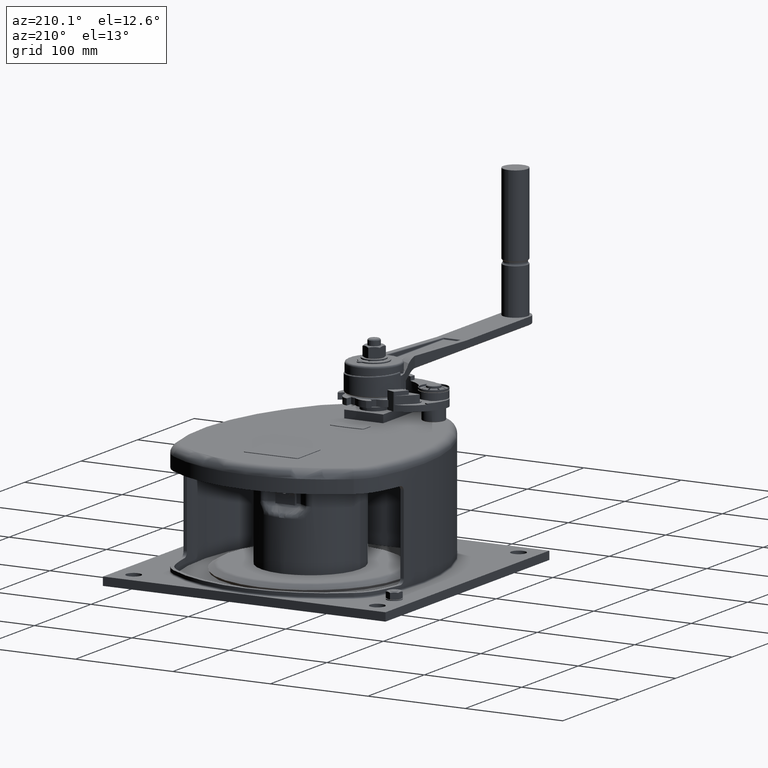
[diagram: clean part render]
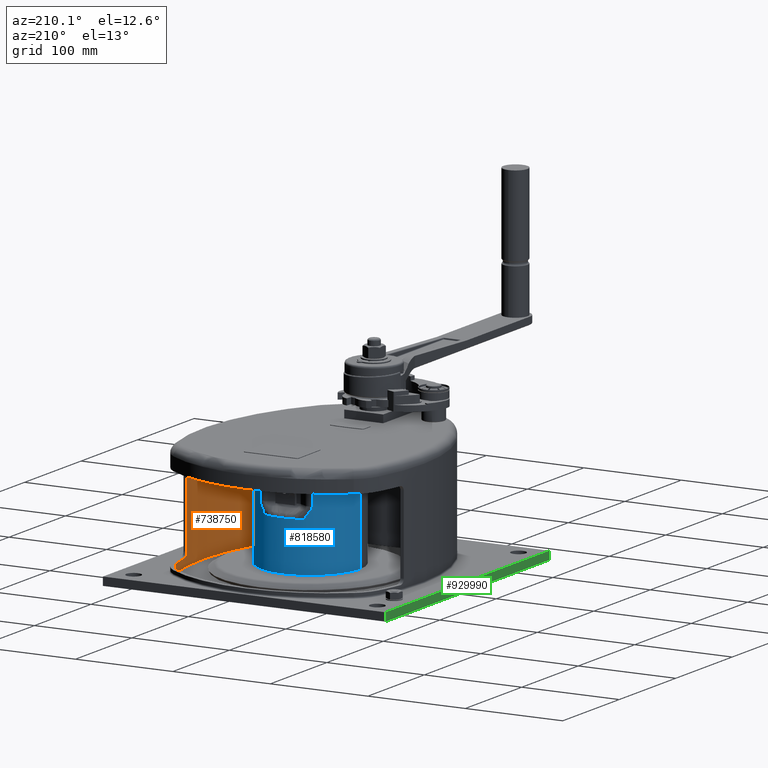
[diagram: same view with three faces highlighted in distinct colors, each labeled with its STEP entity id]
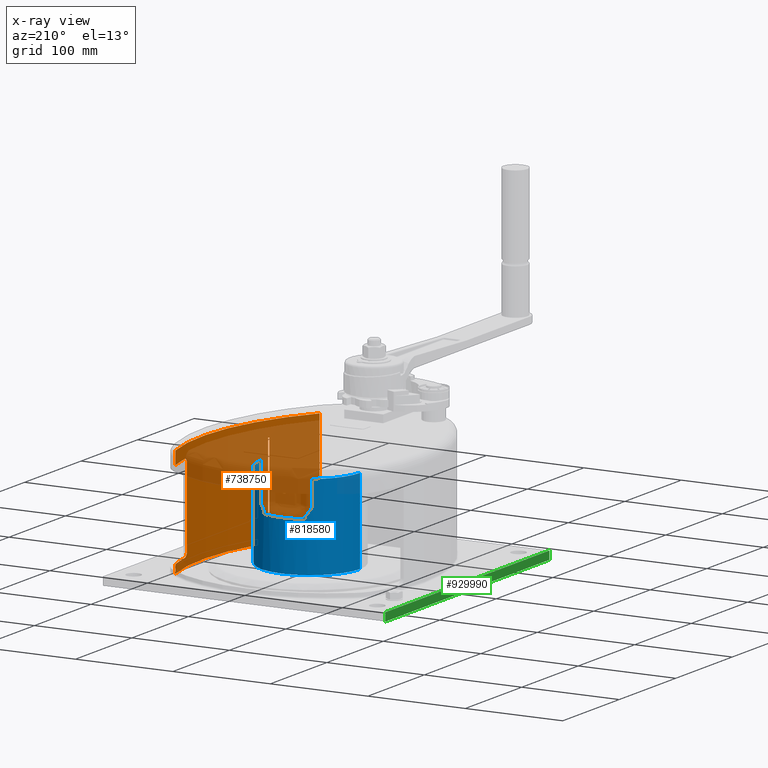
[diagram: x-ray of the same camera — body ghosted, the three highlighted faces saturated]
A machine part, auxiliary view with three faces highlighted in distinct colors.
The next image is the same camera in x-ray (body ghosted, the three faces saturated) — at least one of them is partly hidden behind the body in this view.
Their STEP definitions:

[orange] entity #738750 — the highlighted cylindrical surface (partial cylindrical patch) has radius 226.5 mm, axis along (0, 0, 1).
#279470=CARTESIAN_POINT('',(0.,207.5,-27.));
#279480=DIRECTION('',(-1.,0.,0.));
#279490=DIRECTION('',(0.,1.,0.));
#279500=AXIS2_PLACEMENT_3D('',#279470,#279480,#279490);
#279510=CYLINDRICAL_SURFACE('',#279500,5.);
#280630=CARTESIAN_POINT('',(0.,207.5,-107.));
#280640=DIRECTION('',(-1.,0.,0.));
#280650=DIRECTION('',(0.,1.,0.));
#280660=AXIS2_PLACEMENT_3D('',#280630,#280640,#280650);
#280670=CYLINDRICAL_SURFACE('',#280660,5.);
#294730=CARTESIAN_POINT('',(247.998265216868,233.973623306553,-22.));
#294740=VERTEX_POINT('',#294730);
#294770=CARTESIAN_POINT('',(30.,172.5,-22.));
#294780=DIRECTION('',(0.,0.,1.));
#294790=DIRECTION('',(1.,0.,0.));
#294800=AXIS2_PLACEMENT_3D('',#294770,#294780,#294790);
#294810=CIRCLE('',#294800,226.5);
#294820=CARTESIAN_POINT('',(253.779467333355,207.5,-22.));
#294830=VERTEX_POINT('',#294820);
#294840=EDGE_CURVE('',#294830,#294740,#294810,.T.);
#296380=CARTESIAN_POINT('',(30.,172.5,0.));
#296390=DIRECTION('',(0.,0.,1.));
#296400=DIRECTION('',(1.,0.,0.));
#296410=AXIS2_PLACEMENT_3D('',#296380,#296390,#296400);
#296420=CYLINDRICAL_SURFACE('',#296410,226.5);
#296430=CARTESIAN_POINT('',(253.779467333355,207.5,-22.));
#296440=CARTESIAN_POINT('',(253.792112048051,207.419153499451,-22.));
#296450=CARTESIAN_POINT('',(253.804713364377,207.338297273955,
-22.0019612508768));
#296460=CARTESIAN_POINT('',(253.817256419751,207.25752765568,
-22.0058827444442));
#296470=CARTESIAN_POINT('',(253.829799794675,207.176755979702,
-22.0098043379165));
#296480=CARTESIAN_POINT('',(253.842287735202,207.096052607267,
-22.0156877720614));
#296490=CARTESIAN_POINT('',(253.854700022342,207.015551247335,
-22.0235243991314));
#296500=CARTESIAN_POINT('',(253.867113467603,206.935042376267,
-22.0313617573936));
#296510=CARTESIAN_POINT('',(253.879461446794,206.854669381813,
-22.0411592046096));
#296520=CARTESIAN_POINT('',(253.891723285403,206.774571394734,
-22.0529045553313));
#296530=CARTESIAN_POINT('',(253.903985210193,206.694472844691,
-22.0646499886045));
#296540=CARTESIAN_POINT('',(253.916160487728,206.614652633495,
-22.078342749721));
#296550=CARTESIAN_POINT('',(253.928230381062,206.535241124548,
-22.0939587942786));
#296560=CARTESIAN_POINT('',(253.94030222336,206.455816792771,
-22.1095773604086));
#296570=CARTESIAN_POINT('',(253.952289021068,206.376667231301,
-22.1271463102839));
#296580=CARTESIAN_POINT('',(253.964170837905,206.297931606678,
-22.1466473878587));
#296590=CARTESIAN_POINT('',(253.976052642125,206.219196065665,
-22.1661484447252));
#296600=CARTESIAN_POINT('',(253.987829324573,206.140875404775,
-22.1875814276274));
#296610=CARTESIAN_POINT('',(253.999481642453,206.06310807885,
-22.2109143245357));
#296620=CARTESIAN_POINT('',(254.011133960899,205.985340749145,
-22.2342472225783));
#296630=CARTESIAN_POINT('',(254.022661777602,205.90812768861,
-22.2594797535473));
#296640=CARTESIAN_POINT('',(254.034046989945,205.831603461386,
-22.2865667513012));
#296650=CARTESIAN_POINT('',(254.045432260567,205.755078842449,
-22.313653887708));
#296660=CARTESIAN_POINT('',(254.056674605353,205.679245250844,
-22.3425946279053));
#296670=CARTESIAN_POINT('',(254.067757998741,205.60422670019,
-22.3733334250534));
#296680=CARTESIAN_POINT('',(254.078843474875,205.529194052362,
-22.4040779985086));
#296690=CARTESIAN_POINT('',(254.089808552225,205.454715369767,
-22.4367283919564));
#296700=CARTESIAN_POINT('',(254.100635206179,205.380926084691,
-22.4712556109382));
#296710=CARTESIAN_POINT('',(254.11146182104,205.307137066063,
-22.5057827052445));
#296720=CARTESIAN_POINT('',(254.122149877562,205.234038373341,
-22.542186306419));
#296730=CARTESIAN_POINT('',(254.132681533373,205.161767690369,
-22.5804220036056));
#296740=CARTESIAN_POINT('',(254.143213164459,205.089497177071,
-22.6186576110246));
#296750=CARTESIAN_POINT('',(254.153588260213,205.018055616561,
-22.6587248931504));
#296760=CARTESIAN_POINT('',(254.163789697187,204.947579086822,
-22.7005642833048));
#296770=CARTESIAN_POINT('',(254.173991122279,204.87710263917,
-22.7424036247274));
#296780=CARTESIAN_POINT('',(254.184018757673,204.807592154948,
-22.7860145605707));
#296790=CARTESIAN_POINT('',(254.193856649923,204.739178656321,
-22.8313232905031));
#296800=CARTESIAN_POINT('',(254.203694541975,204.670765159063,
-22.8766320195283));
#296810=CARTESIAN_POINT('',(254.213342566651,204.603449546723,
-22.9236379484724));
#296820=CARTESIAN_POINT('',(254.222786312771,204.537354730656,
-22.9722545998982));
#296830=CARTESIAN_POINT('',(254.232230069561,204.471259839908,
-23.0208713062567));
#296840=CARTESIAN_POINT('',(254.241469432998,204.406386589501,
-23.0710980739244));
#296850=CARTESIAN_POINT('',(254.250491833638,204.34284711472,
-23.1228379374896));
#296860=CARTESIAN_POINT('',(254.259514255282,204.279307492026,
-23.1745779214995));
#296870=CARTESIAN_POINT('',(254.268319611419,204.217102412061,
-23.2278302893425));
#296880=CARTESIAN_POINT('',(254.276897404765,204.156330970161,
-23.282490427868));
#296890=CARTESIAN_POINT('',(254.28547522911,204.095559308648,
-23.3371507639205));
#296900=CARTESIAN_POINT('',(254.293825402693,204.036221953228,
-23.3932181273794));
#296910=CARTESIAN_POINT('',(254.301939662104,203.978403133226,
-23.4505837792771));
#296920=CARTESIAN_POINT('',(254.310050314602,203.920610014574,
-23.5079239312656));
#296930=CARTESIAN_POINT('',(254.317961922616,203.864072804645,
-23.5668200382654));
#296940=CARTESIAN_POINT('',(254.32566317156,203.80889398621,
-23.6272064405066));
#296950=CARTESIAN_POINT('',(254.333364237907,203.75371647607,
-23.6875914109798));
#296960=CARTESIAN_POINT('',(254.340854151959,203.699903049052,
-23.7494609820313));
#296970=CARTESIAN_POINT('',(254.348120327466,203.647566606926,
-23.8127195052942));
#296980=CARTESIAN_POINT('',(254.355386484548,203.595230297515,
-23.8759778681472));
#296990=CARTESIAN_POINT('',(254.362428803239,203.544371726771,
-23.9406243894982));
#297000=CARTESIAN_POINT('',(254.369235863154,203.495096357077,
-24.0065493471743));
#297010=CARTESIAN_POINT('',(254.37604291435,203.445821050505,
-24.072474220401));
#297020=CARTESIAN_POINT('',(254.382614614505,203.398129651058,
-24.1396766487816));
#297030=CARTESIAN_POINT('',(254.388941054768,203.352117144861,
-24.2080351327346));
#297040=CARTESIAN_POINT('',(254.39526749458,203.306104641945,
-24.2763936118138));
#297050=CARTESIAN_POINT('',(254.401348591875,203.261771672406,
-24.3459071995742));
#297060=CARTESIAN_POINT('',(254.407176197184,203.219200367304,
-24.4164453741571));
#297070=CARTESIAN_POINT('',(254.413003809136,203.176629013668,
-24.4869836291587));
#297080=CARTESIAN_POINT('',(254.418577857901,203.135819882441,
-24.5585454813459));
#297090=CARTESIAN_POINT('',(254.423892110843,203.096840520235,
-24.6309945977782));
#297100=CARTESIAN_POINT('',(254.429206376537,203.057861064502,
-24.7034438880438));
#297110=CARTESIAN_POINT('',(254.43426078824,203.020711838871,
-24.7767794353902));
#297120=CARTESIAN_POINT('',(254.439051100609,202.985444741026,
-24.8508627745847));
#297130=CARTESIAN_POINT('',(254.443841430941,202.950177510932,
-24.9249463915855));
#297140=CARTESIAN_POINT('',(254.448367618291,202.916792759319,
-24.9997768044341));
#297150=CARTESIAN_POINT('',(254.452627386709,202.885326379737,
-25.0752175763348));
#297160=CARTESIAN_POINT('',(254.456885306508,202.853873655676,
-25.150625609069));
#297170=CARTESIAN_POINT('',(254.460896483567,202.824193951604,
-25.2269872082799));
#297180=CARTESIAN_POINT('',(254.464653702333,202.796356848504,
-25.3041989788349));
#297190=CARTESIAN_POINT('',(254.468410836794,202.768520370015,
-25.3814090169069));
#297200=CARTESIAN_POINT('',(254.471913622561,202.742529406561,
-25.4594621719887));
#297210=CARTESIAN_POINT('',(254.475155028818,202.718450899872,
-25.5382242979625));
#297220=CARTESIAN_POINT('',(254.478396426722,202.69437245524,
-25.6169862209472));
#297230=CARTESIAN_POINT('',(254.48137639423,202.672206871348,
-25.6964560554384));
#297240=CARTESIAN_POINT('',(254.484089379559,202.652008480866,
-25.7764893827976));
#297250=CARTESIAN_POINT('',(254.486802361409,202.631810116283,
-25.8565226075403));
#297260=CARTESIAN_POINT('',(254.489248320756,202.613579267791,
-25.9371182025863));
#297270=CARTESIAN_POINT('',(254.491423401122,202.597355686805,
-26.0181248866071));
#297280=CARTESIAN_POINT('',(254.493598481411,202.581132106397,
-26.0991315677469));
#297290=CARTESIAN_POINT('',(254.495502653821,202.566916026299,
-26.1805481808538));
#297300=CARTESIAN_POINT('',(254.497133871905,202.554731462784,
-26.2622201582968));
#297310=CARTESIAN_POINT('',(254.498765091964,202.542546884512,
-26.3438922346598));
#297320=CARTESIAN_POINT('',(254.500123340834,202.532393959759,
-26.4258185126912));
#297330=CARTESIAN_POINT('',(254.5012084003,202.524280620945,
-26.5078448812618));
#297340=CARTESIAN_POINT('',(254.502293462485,202.516167261795,
-26.5898714554389));
#297350=CARTESIAN_POINT('',(254.503105330831,202.510093526042,
-26.6719969818668));
#297360=CARTESIAN_POINT('',(254.503645536822,202.506051734228,
-26.7540717202159));
#297370=CARTESIAN_POINT('',(254.504185744917,202.502009926667,
-26.8361467783506));
#297380=CARTESIAN_POINT('',(254.504454298796,202.5,-26.918169967056));
#297390=CARTESIAN_POINT('',(254.504454298796,202.5,-27.));
#297400=B_SPLINE_CURVE_WITH_KNOTS('',3,(#296430,#296440,#296450,#296460,
#296470,#296480,#296490,#296500,#296510,#296520,#296530,#296540,#296550,
#296560,#296570,#296580,#296590,#296600,#296610,#296620,#296630,#296640,
#296650,#296660,#296670,#296680,#296690,#296700,#296710,#296720,#296730,
#296740,#296750,#296760,#296770,#296780,#296790,#296800,#296810,#296820,
#296830,#296840,#296850,#296860,#296870,#296880,#296890,#296900,#296910,
#296920,#296930,#296940,#296950,#296960,#296970,#296980,#296990,#297000,
#297010,#297020,#297030,#297040,#297050,#297060,#297070,#297080,#297090,
#297100,#297110,#297120,#297130,#297140,#297150,#297160,#297170,#297180,
#297190,#297200,#297210,#297220,#297230,#297240,#297250,#297260,#297270,
#297280,#297290,#297300,#297310,#297320,#297330,#297340,#297350,#297360,
#297370,#297380,#297390),.UNSPECIFIED.,.F.,.F.,(4,3,3,3,3,3,3,3,3,3,3,3,
3,3,3,3,3,3,3,3,3,3,3,3,3,3,3,3,3,3,3,3,4),(0.,0.245493394500922,
0.491007956421975,0.736602755545547,0.982181288692658,1.2279358182142,
1.47396617878082,1.71998289530823,1.96569988138808,2.21175818044372,
2.45871310579364,2.70628302510493,2.95416404397753,3.2020426710242,
3.4496077782439,3.69656261534219,3.94263763188693,4.188612923617,
4.43551023997235,4.68304923229731,4.93092111993803,5.17880587668824,
5.42638479870057,5.67335307746212,5.91943319419999,6.16541091155663,
6.41231173077595,6.65985438449989,6.90772776206068,7.1556082311978,
7.40317255539449,7.65011080648077,7.89614012607823),.UNSPECIFIED.);
#297410=SURFACE_CURVE('',#297400,(#296420,#279510),.CURVE_3D.);
#297420=CARTESIAN_POINT('',(254.504454298796,202.5,-27.));
#297430=VERTEX_POINT('',#297420);
#297440=EDGE_CURVE('',#294830,#297430,#297410,.T.);
#735310=CARTESIAN_POINT('',(254.504454298796,202.5,-107.));
#735320=VERTEX_POINT('',#735310);
#735350=CARTESIAN_POINT('',(254.504454298796,202.5,-107.));
#735360=CARTESIAN_POINT('',(254.504454298796,202.5,-107.081830032944));
#735370=CARTESIAN_POINT('',(254.504185744917,202.502009926667,
-107.163853221649));
#735380=CARTESIAN_POINT('',(254.503645536822,202.506051734228,
-107.245928279784));
#735390=CARTESIAN_POINT('',(254.503105330831,202.510093526042,
-107.328003018133));
#735400=CARTESIAN_POINT('',(254.502293462485,202.516167261795,
-107.410128544561));
#735410=CARTESIAN_POINT('',(254.5012084003,202.524280620945,
-107.492155118738));
#735420=CARTESIAN_POINT('',(254.500123340834,202.532393959759,
-107.574181487309));
#735430=CARTESIAN_POINT('',(254.498765091964,202.542546884512,
-107.65610776534));
#735440=CARTESIAN_POINT('',(254.497133871905,202.554731462784,
-107.737779841703));
#735450=CARTESIAN_POINT('',(254.495502653821,202.566916026299,
-107.819451819146));
#735460=CARTESIAN_POINT('',(254.493598481411,202.581132106397,
-107.900868432253));
#735470=CARTESIAN_POINT('',(254.491423401122,202.597355686805,
-107.981875113393));
#735480=CARTESIAN_POINT('',(254.489248320756,202.613579267791,
-108.062881797415));
#735490=CARTESIAN_POINT('',(254.486802361409,202.631810116283,
-108.143477392461));
#735500=CARTESIAN_POINT('',(254.484089379559,202.652008480866,
-108.223510617202));
#735510=CARTESIAN_POINT('',(254.48137639423,202.672206871347,
-108.30354394456));
#735520=CARTESIAN_POINT('',(254.478396426722,202.694372455239,
-108.383013779051));
#735530=CARTESIAN_POINT('',(254.475155028818,202.718450899872,
-108.461775702037));
#735540=CARTESIAN_POINT('',(254.471913622561,202.74252940656,
-108.540537828009));
#735550=CARTESIAN_POINT('',(254.468410836794,202.768520370014,
-108.618590983091));
#735560=CARTESIAN_POINT('',(254.464653702333,202.796356848504,
-108.695801021165));
#735570=CARTESIAN_POINT('',(254.460896483567,202.824193951603,
-108.773012791718));
#735580=CARTESIAN_POINT('',(254.456885306508,202.853873655675,
-108.849374390929));
#735590=CARTESIAN_POINT('',(254.452627386709,202.885326379737,
-108.924782423665));
#735600=CARTESIAN_POINT('',(254.448367618291,202.916792759319,
-109.000223195566));
#735610=CARTESIAN_POINT('',(254.443841430941,202.950177510932,
-109.075053608415));
#735620=CARTESIAN_POINT('',(254.439051100609,202.985444741026,
-109.149137225415));
#735630=CARTESIAN_POINT('',(254.434260788241,203.02071183887,
-109.223220564609));
#735640=CARTESIAN_POINT('',(254.429206376537,203.057861064501,
-109.296556111955));
#735650=CARTESIAN_POINT('',(254.423892110843,203.096840520235,
-109.369005402222));
#735660=CARTESIAN_POINT('',(254.418577857901,203.135819882441,
-109.441454518654));
#735670=CARTESIAN_POINT('',(254.413003809136,203.176629013669,
-109.513016370841));
#735680=CARTESIAN_POINT('',(254.407176197184,203.219200367304,
-109.583554625843));
#735690=CARTESIAN_POINT('',(254.401348591875,203.261771672406,
-109.654092800426));
#735700=CARTESIAN_POINT('',(254.39526749458,203.306104641945,
-109.723606388186));
#735710=CARTESIAN_POINT('',(254.388941054768,203.352117144861,
-109.791964867265));
#735720=CARTESIAN_POINT('',(254.382614614505,203.398129651058,
-109.860323351218));
#735730=CARTESIAN_POINT('',(254.37604291435,203.445821050505,
-109.927525779599));
#735740=CARTESIAN_POINT('',(254.369235863154,203.495096357077,
-109.993450652826));
#735750=CARTESIAN_POINT('',(254.362428803239,203.544371726772,
-110.059375610503));
#735760=CARTESIAN_POINT('',(254.355386484548,203.595230297516,
-110.124022131855));
#735770=CARTESIAN_POINT('',(254.348120327466,203.647566606926,
-110.187280494706));
#735780=CARTESIAN_POINT('',(254.340854151959,203.699903049052,
-110.250539017969));
#735790=CARTESIAN_POINT('',(254.333364237907,203.75371647607,
-110.31240858902));
#735800=CARTESIAN_POINT('',(254.32566317156,203.80889398621,
-110.372793559493));
#735810=CARTESIAN_POINT('',(254.317961922616,203.864072804645,
-110.433179961735));
#735820=CARTESIAN_POINT('',(254.310050314602,203.920610014574,
-110.492076068734));
#735830=CARTESIAN_POINT('',(254.301939662104,203.978403133227,
-110.549416220723));
#735840=CARTESIAN_POINT('',(254.293825402693,204.036221953229,
-110.606781872622));
#735850=CARTESIAN_POINT('',(254.28547522911,204.095559308649,
-110.66284923608));
#735860=CARTESIAN_POINT('',(254.276897404765,204.156330970161,
-110.717509572132));
#735870=CARTESIAN_POINT('',(254.268319611419,204.217102412061,
-110.772169710657));
#735880=CARTESIAN_POINT('',(254.259514255282,204.279307492025,
-110.8254220785));
#735890=CARTESIAN_POINT('',(254.250491833638,204.34284711472,
-110.87716206251));
#735900=CARTESIAN_POINT('',(254.241469432998,204.406386589501,
-110.928901926075));
#735910=CARTESIAN_POINT('',(254.232230069561,204.471259839908,
-110.979128693744));
#735920=CARTESIAN_POINT('',(254.222786312771,204.537354730656,
-111.027745400102));
#735930=CARTESIAN_POINT('',(254.213342566651,204.603449546723,
-111.076362051528));
#735940=CARTESIAN_POINT('',(254.203694541975,204.670765159063,
-111.123367980472));
#735950=CARTESIAN_POINT('',(254.193856649923,204.739178656321,
-111.168676709497));
#735960=CARTESIAN_POINT('',(254.184018757673,204.807592154949,
-111.21398543943));
#735970=CARTESIAN_POINT('',(254.173991122279,204.877102639171,
-111.257596375273));
#735980=CARTESIAN_POINT('',(254.163789697187,204.947579086822,
-111.299435716695));
#735990=CARTESIAN_POINT('',(254.153588260213,205.018055616561,
-111.34127510685));
#736000=CARTESIAN_POINT('',(254.143213164459,205.089497177071,
-111.381342388975));
#736010=CARTESIAN_POINT('',(254.132681533373,205.16176769037,
-111.419577996394));
#736020=CARTESIAN_POINT('',(254.122149877562,205.234038373338,
-111.45781369358));
#736030=CARTESIAN_POINT('',(254.11146182104,205.307137066061,
-111.494217294754));
#736040=CARTESIAN_POINT('',(254.100635206179,205.380926084691,
-111.528744389062));
#736050=CARTESIAN_POINT('',(254.089808552225,205.454715369767,
-111.563271608044));
#736060=CARTESIAN_POINT('',(254.078843474875,205.529194052362,
-111.595922001491));
#736070=CARTESIAN_POINT('',(254.067757998741,205.60422670019,
-111.626666574947));
#736080=CARTESIAN_POINT('',(254.056674605353,205.679245250843,
-111.657405372095));
#736090=CARTESIAN_POINT('',(254.045432260567,205.75507884245,
-111.686346112292));
#736100=CARTESIAN_POINT('',(254.034046989945,205.831603461386,
-111.713433248699));
#736110=CARTESIAN_POINT('',(254.022661777602,205.908127688609,
-111.740520246453));
#736120=CARTESIAN_POINT('',(254.011133960899,205.985340749145,
-111.765752777422));
#736130=CARTESIAN_POINT('',(253.999481642453,206.06310807885,
-111.789085675464));
#736140=CARTESIAN_POINT('',(253.987829324573,206.140875404776,
-111.812418572373));
#736150=CARTESIAN_POINT('',(253.976052642125,206.219196065666,
-111.833851555275));
#736160=CARTESIAN_POINT('',(253.964170837905,206.297931606678,
-111.853352612141));
#736170=CARTESIAN_POINT('',(253.952289021068,206.376667231301,
-111.872853689716));
#736180=CARTESIAN_POINT('',(253.94030222336,206.455816792771,
-111.890422639591));
#736190=CARTESIAN_POINT('',(253.928230381062,206.535241124548,
-111.906041205721));
#736200=CARTESIAN_POINT('',(253.916160487728,206.614652633495,
-111.921657250279));
#736210=CARTESIAN_POINT('',(253.903985210193,206.694472844691,
-111.935350011396));
#736220=CARTESIAN_POINT('',(253.891723285403,206.774571394734,
-111.947095444669));
#736230=CARTESIAN_POINT('',(253.879461446794,206.854669381813,
-111.95884079539));
#736240=CARTESIAN_POINT('',(253.867113467603,206.935042376267,
-111.968638242606));
#736250=CARTESIAN_POINT('',(253.854700022342,207.015551247335,
-111.976475600869));
#736260=CARTESIAN_POINT('',(253.842287735202,207.096052607267,
-111.984312227939));
#736270=CARTESIAN_POINT('',(253.829799794675,207.176755979702,
-111.990195662084));
#736280=CARTESIAN_POINT('',(253.817256419751,207.25752765568,
-111.994117255556));
#736290=CARTESIAN_POINT('',(253.804713364377,207.338297273955,
-111.998038749123));
#736300=CARTESIAN_POINT('',(253.792112048051,207.41915349945,-112.));
#736310=CARTESIAN_POINT('',(253.779467333355,207.5,-112.));
#736320=B_SPLINE_CURVE_WITH_KNOTS('',3,(#735350,#735360,#735370,#735380,
#735390,#735400,#735410,#735420,#735430,#735440,#735450,#735460,#735470,
#735480,#735490,#735500,#735510,#735520,#735530,#735540,#735550,#735560,
#735570,#735580,#735590,#735600,#735610,#735620,#735630,#735640,#735650,
#735660,#735670,#735680,#735690,#735700,#735710,#735720,#735730,#735740,
#735750,#735760,#735770,#735780,#735790,#735800,#735810,#735820,#735830,
#735840,#735850,#735860,#735870,#735880,#735890,#735900,#735910,#735920,
#735930,#735940,#735950,#735960,#735970,#735980,#735990,#736000,#736010,
#736020,#736030,#736040,#736050,#736060,#736070,#736080,#736090,#736100,
#736110,#736120,#736130,#736140,#736150,#736160,#736170,#736180,#736190,
#736200,#736210,#736220,#736230,#736240,#736250,#736260,#736270,#736280,
#736290,#736300,#736310),.UNSPECIFIED.,.F.,.F.,(4,3,3,3,3,3,3,3,3,3,3,3,
3,3,3,3,3,3,3,3,3,3,3,3,3,3,3,3,3,3,3,3,4),(0.,0.24602931959744,
0.492967570683725,0.740531894880428,0.988412364017554,1.23628574157837,
1.48382839530232,1.73072921452162,1.97670693187831,2.22278704861619,
2.4697553273777,2.71733424939009,2.96521900614031,3.21309089378098,
3.46062988610589,3.70752720246125,3.95350249419139,4.19957751073606,
4.44653234783434,4.69409745505403,4.9419760821007,5.18985710097335,
5.43742702028471,5.68438194563463,5.93044024469028,6.17615723077006,
6.42217394729748,6.66820430786409,6.91395883738567,7.15953737053282,
7.40513216965637,7.65064673157745,7.8961401260783),.UNSPECIFIED.);
#736330=SURFACE_CURVE('',#736320,(#296420,#280670),.CURVE_3D.);
#736340=CARTESIAN_POINT('',(253.779467333355,207.5,-112.));
#736350=VERTEX_POINT('',#736340);
#736360=EDGE_CURVE('',#735320,#736350,#736330,.T.);
#736520=CARTESIAN_POINT('',(30.,172.5,-8.5));
#736530=DIRECTION('',(0.,0.,1.));
#736540=DIRECTION('',(1.,0.,0.));
#736550=AXIS2_PLACEMENT_3D('',#736520,#736530,#736540);
#736560=CIRCLE('',#736550,226.5);
#736570=CARTESIAN_POINT('',(213.037325022813,39.0849047202935,
-8.50000000000015));
#736580=VERTEX_POINT('',#736570);
#736590=CARTESIAN_POINT('',(247.998265216868,233.973623306553,-8.5));
#736600=VERTEX_POINT('',#736590);
#736610=EDGE_CURVE('',#736580,#736600,#736560,.T.);
#737930=CARTESIAN_POINT('',(239.124962641957,85.4999999999999,0.));
#737940=DIRECTION('',(0.,0.,1.));
#737950=VECTOR('',#737940,1.);
#737960=LINE('',#737930,#737950);
#737970=CARTESIAN_POINT('',(239.124962641957,85.4999999999999,-109.5));
#737980=VERTEX_POINT('',#737970);
#737990=CARTESIAN_POINT('',(239.124962641957,85.4999999999999,-24.5));
#738000=VERTEX_POINT('',#737990);
#738010=EDGE_CURVE('',#737980,#738000,#737960,.T.);
#738020=ORIENTED_EDGE('',*,*,#738010,.T.);
#738030=CARTESIAN_POINT('',(30.,172.5,-109.5));
#738040=DIRECTION('',(0.,0.,1.));
#738050=DIRECTION('',(1.,0.,0.));
#738060=AXIS2_PLACEMENT_3D('',#738030,#738040,#738050);
#738070=CIRCLE('',#738060,226.5);
#738080=CARTESIAN_POINT('',(238.494604246729,83.9999999999999,-109.5));
#738090=VERTEX_POINT('',#738080);
#738100=EDGE_CURVE('',#738090,#737980,#738070,.T.);
#738110=ORIENTED_EDGE('',*,*,#738100,.T.);
#738120=CARTESIAN_POINT('',(238.494604246729,83.9999999999999,0.));
#738130=DIRECTION('',(0.,0.,1.));
#738140=VECTOR('',#738130,1.);
#738150=LINE('',#738120,#738140);
#738160=CARTESIAN_POINT('',(238.494604246729,83.9999999999999,-24.5));
#738170=VERTEX_POINT('',#738160);
#738180=EDGE_CURVE('',#738090,#738170,#738150,.T.);
#738190=ORIENTED_EDGE('',*,*,#738180,.F.);
#738200=CARTESIAN_POINT('',(30.,172.5,-24.5));
#738210=DIRECTION('',(0.,0.,1.));
#738220=DIRECTION('',(1.,0.,0.));
#738230=AXIS2_PLACEMENT_3D('',#738200,#738210,#738220);
#738240=CIRCLE('',#738230,226.5);
#738250=EDGE_CURVE('',#738170,#738000,#738240,.T.);
#738260=ORIENTED_EDGE('',*,*,#738250,.F.);
#738270=EDGE_LOOP('',(#738260,#738190,#738110,#738020));
#738280=FACE_BOUND('',#738270,.T.);
#738290=CARTESIAN_POINT('',(213.037325022813,39.0849047202936,0.));
#738300=DIRECTION('',(0.,0.,1.));
#738310=VECTOR('',#738300,1.);
#738320=LINE('',#738290,#738310);
#738330=CARTESIAN_POINT('',(213.037325022813,39.0849047202935,-120.5));
#738340=VERTEX_POINT('',#738330);
#738350=EDGE_CURVE('',#738340,#736580,#738320,.T.);
#738360=ORIENTED_EDGE('',*,*,#738350,.T.);
#738370=CARTESIAN_POINT('',(30.,172.5,-120.5));
#738380=DIRECTION('',(0.,0.,1.));
#738390=DIRECTION('',(1.,0.,0.));
#738400=AXIS2_PLACEMENT_3D('',#738370,#738380,#738390);
#738410=CIRCLE('',#738400,226.5);
#738420=CARTESIAN_POINT('',(247.998265216868,233.973623306553,-120.5));
#738430=VERTEX_POINT('',#738420);
#738440=EDGE_CURVE('',#738340,#738430,#738410,.T.);
#738450=ORIENTED_EDGE('',*,*,#738440,.F.);
#738460=CARTESIAN_POINT('',(247.998265216868,233.973623306553,0.));
#738470=DIRECTION('',(0.,0.,-1.));
#738480=VECTOR('',#738470,1.);
#738490=LINE('',#738460,#738480);
#738500=CARTESIAN_POINT('',(247.998265216868,233.973623306553,-112.));
#738510=VERTEX_POINT('',#738500);
#738520=EDGE_CURVE('',#738510,#738430,#738490,.T.);
#738530=ORIENTED_EDGE('',*,*,#738520,.T.);
#738540=CARTESIAN_POINT('',(30.,172.5,-112.));
#738550=DIRECTION('',(0.,0.,1.));
#738560=DIRECTION('',(1.,0.,0.));
#738570=AXIS2_PLACEMENT_3D('',#738540,#738550,#738560);
#738580=CIRCLE('',#738570,226.5);
#738590=EDGE_CURVE('',#736350,#738510,#738580,.T.);
#738600=ORIENTED_EDGE('',*,*,#738590,.T.);
#738610=ORIENTED_EDGE('',*,*,#736360,.T.);
#738620=CARTESIAN_POINT('',(254.504454298796,202.5,0.));
#738630=DIRECTION('',(0.,0.,1.));
#738640=VECTOR('',#738630,1.);
#738650=LINE('',#738620,#738640);
#738660=EDGE_CURVE('',#735320,#297430,#738650,.T.);
#738670=ORIENTED_EDGE('',*,*,#738660,.F.);
#738680=ORIENTED_EDGE('',*,*,#297440,.T.);
#738690=ORIENTED_EDGE('',*,*,#294840,.F.);
#738700=EDGE_CURVE('',#736600,#294740,#738490,.T.);
#738710=ORIENTED_EDGE('',*,*,#738700,.T.);
#738720=ORIENTED_EDGE('',*,*,#736610,.T.);
#738730=EDGE_LOOP('',(#738720,#738710,#738690,#738680,#738670,#738610,
#738600,#738530,#738450,#738360));
#738740=FACE_OUTER_BOUND('',#738730,.T.);
#738750=ADVANCED_FACE('',(#738280,#738740),#296420,.F.);

[blue] entity #818580 — the highlighted cylindrical surface (partial cylindrical patch) has radius 50.8 mm, axis along (0, 0, 1).
#809580=CARTESIAN_POINT('',(145.,172.5,-111.));
#809590=DIRECTION('',(0.,0.,1.));
#809600=DIRECTION('',(1.,0.,0.));
#809610=AXIS2_PLACEMENT_3D('',#809580,#809590,#809600);
#809620=CIRCLE('',#809610,50.8);
#809630=CARTESIAN_POINT('',(146.632020273416,223.273777777778,-111.));
#809640=VERTEX_POINT('',#809630);
#809650=CARTESIAN_POINT('',(143.367979726584,223.273777777778,-111.));
#809660=VERTEX_POINT('',#809650);
#809670=EDGE_CURVE('',#809640,#809660,#809620,.T.);
#811720=CARTESIAN_POINT('',(145.,172.5,-111.));
#811730=DIRECTION('',(0.,0.,1.));
#811740=DIRECTION('',(1.,0.,0.));
#811750=AXIS2_PLACEMENT_3D('',#811720,#811730,#811740);
#811760=CIRCLE('',#811750,50.8);
#811770=CARTESIAN_POINT('',(94.2,172.5,-111.));
#811780=VERTEX_POINT('',#811770);
#811790=EDGE_CURVE('',#809660,#811780,#811760,.T.);
#811810=CARTESIAN_POINT('',(195.8,172.5,-111.));
#811820=VERTEX_POINT('',#811810);
#811850=EDGE_CURVE('',#811820,#809640,#811760,.T.);
#814000=CARTESIAN_POINT('',(145.,172.5,-23.4999999999999));
#814010=DIRECTION('',(0.,0.,1.));
#814020=DIRECTION('',(1.,0.,0.));
#814030=AXIS2_PLACEMENT_3D('',#814000,#814010,#814020);
#814040=CYLINDRICAL_SURFACE('',#814030,50.8);
#814050=CARTESIAN_POINT('',(145.,172.5,-23.4999999999999));
#814060=DIRECTION('',(0.,0.,1.));
#814070=DIRECTION('',(1.,0.,0.));
#814080=AXIS2_PLACEMENT_3D('',#814050,#814060,#814070);
#814090=CYLINDRICAL_SURFACE('',#814080,50.8);
#814100=CARTESIAN_POINT('',(118.273060966737,111.537031943381,
-48.4999999999999));
#814110=CARTESIAN_POINT('',(118.273060966737,111.537031943381,
-53.4204522948528));
#814120=CARTESIAN_POINT('',(124.,111.537031943381,-55.3795477051471));
#814130=CARTESIAN_POINT('',(124.,111.537031943381,-60.2999999999999));
#814140=(BOUNDED_CURVE() B_SPLINE_CURVE(3,(#814100,#814110,#814120,
#814130),.UNSPECIFIED.,.F.,.F.) B_SPLINE_CURVE_WITH_KNOTS((4,4),(1.,
15.7613568845587),.UNSPECIFIED.) CURVE() GEOMETRIC_REPRESENTATION_ITEM()
 RATIONAL_B_SPLINE_CURVE((1.,1.,1.,1.)) REPRESENTATION_ITEM(''));
#814150=DIRECTION('',(0.,1.,0.));
#814160=VECTOR('',#814150,1.);
#814170=SURFACE_OF_LINEAR_EXTRUSION('',#814140,#814160);
#814180=CARTESIAN_POINT('',(118.273060966737,215.700818625487,
-48.4999999999999));
#814190=CARTESIAN_POINT('',(118.273060966737,215.700818625487,
-48.5718382819806));
#814200=CARTESIAN_POINT('',(118.274282539247,215.701574447094,
-48.6437992396597));
#814210=CARTESIAN_POINT('',(118.276761978073,215.703108101426,
-48.7158122834289));
#814220=CARTESIAN_POINT('',(118.279241402813,215.704641747045,
-48.7878249180698));
#814230=CARTESIAN_POINT('',(118.28297884355,215.706953321852,
-48.8598887043371));
#814240=CARTESIAN_POINT('',(118.287998797701,215.710056604556,
-48.9319217725902));
#814250=CARTESIAN_POINT('',(118.293018731355,215.713159874589,
-49.0039545467155));
#814260=CARTESIAN_POINT('',(118.299321244232,215.717054893596,
-49.0759555289641));
#814270=CARTESIAN_POINT('',(118.306916621823,215.721745681627,
-49.1478356620475));
#814280=CARTESIAN_POINT('',(118.314511979914,215.726436457616,
-49.2197156105929));
#814290=CARTESIAN_POINT('',(118.323400170801,215.731922979215,
-49.2914735499126));
#814300=CARTESIAN_POINT('',(118.333575747144,215.738198593015,
-49.3630173490166));
#814310=CARTESIAN_POINT('',(118.343751311887,215.744474199661,
-49.4345610665532));
#814320=CARTESIAN_POINT('',(118.355214128919,215.751538808474,
-49.5058894601372));
#814330=CARTESIAN_POINT('',(118.367942482872,215.759374849927,
-49.5769112846863));
#814340=CARTESIAN_POINT('',(118.3806708394,215.767210892965,
-49.6479331235995));
#814350=CARTESIAN_POINT('',(118.394664506294,215.775818217503,
-49.7186472501072));
#814360=CARTESIAN_POINT('',(118.409885965183,215.785168771956,
-49.7889669437984));
#814370=CARTESIAN_POINT('',(118.425107446468,215.794519340167,
-49.8592867409585));
#814380=CARTESIAN_POINT('',(118.441556417872,215.804612938365,
-49.9292110596136));
#814390=CARTESIAN_POINT('',(118.459180959047,215.815412091262,
-49.9986608867852));
#814400=CARTESIAN_POINT('',(118.476805547498,215.826211273128,
-50.0681109002528));
#814410=CARTESIAN_POINT('',(118.495605353665,215.837715777957,
-50.1370855180261));
#814420=CARTESIAN_POINT('',(118.515516260235,215.849880288626,
-50.2055160746578));
#814430=CARTESIAN_POINT('',(118.535427243484,215.862044846142,
-50.2739468948211));
#814440=CARTESIAN_POINT('',(118.556448952818,215.874869164703,
-50.3418329171956));
#814450=CARTESIAN_POINT('',(118.578507904626,215.888302057745,
-50.4091178924552));
#814460=CARTESIAN_POINT('',(118.600568995731,215.901736253521,
-50.4764093930729));
#814470=CARTESIAN_POINT('',(118.623657614872,215.915773108784,
-50.5430728589592));
#814480=CARTESIAN_POINT('',(118.647721250442,215.930374217886,
-50.609140790119));
#814490=CARTESIAN_POINT('',(118.671794158468,215.944980953242,
-50.6752341792754));
#814500=CARTESIAN_POINT('',(118.696882448688,215.960176410602,
-50.7408392624079));
#814510=CARTESIAN_POINT('',(118.722933278803,215.975921663948,
-50.8059582232522));
#814520=CARTESIAN_POINT('',(118.74898409054,215.991666906187,
-50.8710771381553));
#814530=CARTESIAN_POINT('',(118.775997367136,216.007961889776,
-50.9357097746142));
#814540=CARTESIAN_POINT('',(118.803917187678,216.024765884378,
-50.9998585076252));
#814550=CARTESIAN_POINT('',(118.859756933513,216.058373936631,
-51.1281562143302));
#814560=CARTESIAN_POINT('',(118.919224338879,216.09401858375,
-51.2545159557195));
#814570=CARTESIAN_POINT('',(118.981842688453,216.131359022056,
-51.3789672862823));
#814580=CARTESIAN_POINT('',(119.04446093446,216.168699398605,
-51.5034184110113));
#814590=CARTESIAN_POINT('',(119.110228250683,216.207734204691,
-51.6259592072977));
#814600=CARTESIAN_POINT('',(119.178639710515,216.248112562722,
-51.7466340972217));
#814610=CARTESIAN_POINT('',(119.247051162405,216.288490916066,
-51.867308973137));
#814620=CARTESIAN_POINT('',(119.318105533043,216.330211907964,
-51.986117475184));
#814630=CARTESIAN_POINT('',(119.39128246576,216.372925435301,
-52.1031161763761));
#814640=CARTESIAN_POINT('',(119.464459424591,216.415638977882,
-52.2201149193211));
#814650=CARTESIAN_POINT('',(119.539758305785,216.459344548981,
-52.3353042759616));
#814660=CARTESIAN_POINT('',(119.616653106456,216.50370098619,
-52.4487456963317));
#814670=CARTESIAN_POINT('',(119.655100665921,216.525879296588,
-52.5054666412786));
#814680=CARTESIAN_POINT('',(119.693946589341,216.548220173641,
-52.5617497889554));
#814690=CARTESIAN_POINT('',(119.733126912207,216.570683275454,
-52.6176050444479));
#814700=CARTESIAN_POINT('',(119.772311486917,216.59314881496,
-52.6734663613471));
#814710=CARTESIAN_POINT('',(119.811885460962,216.615768127545,
-52.7289782015276));
#814720=CARTESIAN_POINT('',(119.851811029017,216.638515963722,
-52.7841778641921));
#814730=CARTESIAN_POINT('',(119.931662155622,216.684011630659,
-52.8945771763781));
#814740=CARTESIAN_POINT('',(120.012918739465,216.730020381234,
-53.0037291480547));
#814750=CARTESIAN_POINT('',(120.095295186196,216.776355745898,
-53.1119190997415));
#814760=CARTESIAN_POINT('',(120.177671713164,216.822691155693,
-53.220109156809));
#814770=CARTESIAN_POINT('',(120.261168999278,216.869353695922,
-53.3273375360858));
#814780=CARTESIAN_POINT('',(120.345516987243,216.916173488648,
-53.4338739111717));
#814790=CARTESIAN_POINT('',(120.429864987774,216.96299328835,
-53.5404103021299));
#814800=CARTESIAN_POINT('',(120.515064260454,217.009970663955,
-53.6462546808182));
#814810=CARTESIAN_POINT('',(120.600853388934,217.056948331901,
-53.7516639120872));
#814820=CARTESIAN_POINT('',(120.686642503486,217.10392599222,
-53.8570731262425));
#814830=CARTESIAN_POINT('',(120.773021818104,217.150904136917,
-53.9620469827052));
#814840=CARTESIAN_POINT('',(120.859733520547,217.197735225635,
-54.066833466072));
#814850=CARTESIAN_POINT('',(120.946445209733,217.244566307194,
-54.1716199334194));
#814860=CARTESIAN_POINT('',(121.033489501603,217.291250450871,
-54.2762187192194));
#814870=CARTESIAN_POINT('',(121.120608442554,217.337647784492,
-54.3808733502454));
#814880=CARTESIAN_POINT('',(121.2077273834,217.384045118057,
-54.4855279811455));
#814890=CARTESIAN_POINT('',(121.294921150497,217.430155737612,
-54.5902381297626));
#814900=CARTESIAN_POINT('',(121.381928560558,217.475845756155,
-54.6952474237053));
#814910=CARTESIAN_POINT('',(121.468935984843,217.521535782167,
-54.8002567348146));
#814920=CARTESIAN_POINT('',(121.555757276226,217.566805326334,
-54.9055649105241));
#814930=CARTESIAN_POINT('',(121.642124964532,217.61152484485,
-55.0114201525853));
#814940=CARTESIAN_POINT('',(121.728492665641,217.656244369994,
-55.1172754103375));
#814950=CARTESIAN_POINT('',(121.814407120528,217.700414054721,
-55.2236775748174));
#814960=CARTESIAN_POINT('',(121.899590893597,217.743906762312,
-55.3308835399229));
#814970=CARTESIAN_POINT('',(121.984774651177,217.787399461996,
-55.438089485537));
#814980=CARTESIAN_POINT('',(122.069228308082,217.830215479375,
-55.5460992960877));
#814990=CARTESIAN_POINT('',(122.152659577824,217.872227580682,
-55.6551819683982));
#815000=CARTESIAN_POINT('',(122.236090763825,217.914239639821,
-55.7642645312199));
#815010=CARTESIAN_POINT('',(122.318500453533,217.955448226012,
-55.8744203817079));
#815020=CARTESIAN_POINT('',(122.399574918774,217.995722723657,
-55.9859327158422));
#815030=CARTESIAN_POINT('',(122.440113966329,218.015860874065,
-56.0416913792266));
#815040=CARTESIAN_POINT('',(122.480311203583,218.035761657933,
-56.0977786733513));
#815050=CARTESIAN_POINT('',(122.52014649546,218.055418847975,
-56.1542621418008));
#815060=CARTESIAN_POINT('',(122.559991910425,218.075081033372,
-56.2107599640333));
#815070=CARTESIAN_POINT('',(122.599521326862,218.094522208495,
-56.267720156123));
#815080=CARTESIAN_POINT('',(122.638662344053,218.11371041953,
-56.3251469020383));
#815090=CARTESIAN_POINT('',(122.716944305838,218.15208680601,
-56.4400002873582));
#815100=CARTESIAN_POINT('',(122.793672733412,218.18945060431,
-56.5567208518343));
#815110=CARTESIAN_POINT('',(122.868263476401,218.225553451544,
-56.6753340950195));
#815120=CARTESIAN_POINT('',(122.942854092131,218.261656237182,
-56.7939471358387));
#815130=CARTESIAN_POINT('',(123.015305456364,218.296497468831,
-56.9144527038156));
#815140=CARTESIAN_POINT('',(123.085038511343,218.329842493191,
-57.0368558264067));
#815150=CARTESIAN_POINT('',(123.119904925577,218.346514951214,
-57.0980571889037));
#815160=CARTESIAN_POINT('',(123.154091792717,218.362813534834,
-57.1597322935965));
#815170=CARTESIAN_POINT('',(123.187528519983,218.3787106176,
-57.2218789448719));
#815180=CARTESIAN_POINT('',(123.220965242337,218.39460769803,
-57.2840255870159));
#815190=CARTESIAN_POINT('',(123.253651730931,218.41010324052,
-57.3466436916999));
#815200=CARTESIAN_POINT('',(123.285519513037,218.425171063169,
-57.4097291007679));
#815210=CARTESIAN_POINT('',(123.317387296184,218.44023888631,
-57.4728145118976));
#815220=CARTESIAN_POINT('',(123.348436265895,218.454878947309,
-57.5363671051408));
#815230=CARTESIAN_POINT('',(123.378600818138,218.469066745134,
-57.6003808330844));
#815240=CARTESIAN_POINT('',(123.408765379067,218.483254547044,
-57.6643945794626));
#815250=CARTESIAN_POINT('',(123.438045406515,218.49699004001,
-57.7288692960623));
#815260=CARTESIAN_POINT('',(123.466378934565,218.51025063842,
-57.793797336272));
#815270=CARTESIAN_POINT('',(123.494712480373,218.523511245142,
-57.8587254171759));
#815280=CARTESIAN_POINT('',(123.522099407876,218.536296910736,
-57.9241066137449));
#815290=CARTESIAN_POINT('',(123.548482128232,218.548587176994,
-57.9899322286048));
#815300=CARTESIAN_POINT('',(123.574864876337,218.560877456179,
-58.0557579127033));
#815310=CARTESIAN_POINT('',(123.6002433037,218.572672292177,
-58.1220277664617));
#815320=CARTESIAN_POINT('',(123.624564839997,218.583953516604,
-58.1887328777443));
#815330=CARTESIAN_POINT('',(123.648886414212,218.595234758619,
-58.2554380930218));
#815340=CARTESIAN_POINT('',(123.672150998752,218.606002352055,
-58.3225782845541));
#815350=CARTESIAN_POINT('',(123.69431150639,218.61624049956,
-58.3901454562633));
#815360=CARTESIAN_POINT('',(123.716465496152,218.626475635808,
-58.4576927550323));
#815370=CARTESIAN_POINT('',(123.737550681367,218.63619763076,
-58.5257726110427));
#815380=CARTESIAN_POINT('',(123.757511189214,218.645386217082,
-58.5943687359743));
#815390=CARTESIAN_POINT('',(123.777470807656,218.654574393976,
-58.662961804385));
#815400=CARTESIAN_POINT('',(123.796301633501,218.663227274918,
-58.7320585686596));
#815410=CARTESIAN_POINT('',(123.813945535253,218.67132331022,
-58.8015973492761));
#815420=CARTESIAN_POINT('',(123.831589387488,218.679419322802,
-58.8711359347364));
#815430=CARTESIAN_POINT('',(123.848046013048,218.686958362487,
-58.941115767936));
#815440=CARTESIAN_POINT('',(123.86326861931,218.693923697183,
-59.0114656254405));
#815450=CARTESIAN_POINT('',(123.878491199561,218.700889019977,
-59.0818153627325));
#815460=CARTESIAN_POINT('',(123.892479509829,218.707280533337,
-59.1525342657127));
#815470=CARTESIAN_POINT('',(123.90520005921,218.713087058316,
-59.2235439911595));
#815480=CARTESIAN_POINT('',(123.917920600687,218.718893579686,
-59.2945536724796));
#815490=CARTESIAN_POINT('',(123.929373199143,218.724115037608,
-59.3658532637977));
#815500=CARTESIAN_POINT('',(123.939538878941,218.728746223215,
-59.437360012005));
#815510=CARTESIAN_POINT('',(123.949704563458,218.733377410972,
-59.5088667934036));
#815520=CARTESIAN_POINT('',(123.958583225752,218.737418284522,
-59.5805798072878));
#815530=CARTESIAN_POINT('',(123.966170805613,218.740869687143,
-59.6524148030579));
#815540=CARTESIAN_POINT('',(123.973758397287,218.744321095136,
-59.7242499106657));
#815550=CARTESIAN_POINT('',(123.980054883678,218.747183024055,
-59.7962061067239));
#815560=CARTESIAN_POINT('',(123.985070699961,218.749462121363,
-59.8682006582808));
#815570=CARTESIAN_POINT('',(123.990086529605,218.75174122474,
-59.9401954016064));
#815580=CARTESIAN_POINT('',(123.993821741424,218.75343751958,
-60.0122276769615));
#815590=CARTESIAN_POINT('',(123.99630007545,218.754562904427,
-60.0842192836213));
#815600=CARTESIAN_POINT('',(123.998778418867,218.755688293538,
-60.156211163039));
#815610=CARTESIAN_POINT('',(124.,218.756242821915,-60.228161651398));
#815620=CARTESIAN_POINT('',(124.,218.756242821915,-60.2999999999999));
#815630=B_SPLINE_CURVE_WITH_KNOTS('',3,(#814180,#814190,#814200,#814210,
#814220,#814230,#814240,#814250,#814260,#814270,#814280,#814290,#814300,
#814310,#814320,#814330,#814340,#814350,#814360,#814370,#814380,#814390,
#814400,#814410,#814420,#814430,#814440,#814450,#814460,#814470,#814480,
#814490,#814500,#814510,#814520,#814530,#814540,#814550,#814560,#814570,
#814580,#814590,#814600,#814610,#814620,#814630,#814640,#814650,#814660,
#814670,#814680,#814690,#814700,#814710,#814720,#814730,#814740,#814750,
#814760,#814770,#814780,#814790,#814800,#814810,#814820,#814830,#814840,
#814850,#814860,#814870,#814880,#814890,#814900,#814910,#814920,#814930,
#814940,#814950,#814960,#814970,#814980,#814990,#815000,#815010,#815020,
#815030,#815040,#815050,#815060,#815070,#815080,#815090,#815100,#815110,
#815120,#815130,#815140,#815150,#815160,#815170,#815180,#815190,#815200,
#815210,#815220,#815230,#815240,#815250,#815260,#815270,#815280,#815290,
#815300,#815310,#815320,#815330,#815340,#815350,#815360,#815370,#815380,
#815390,#815400,#815410,#815420,#815430,#815440,#815450,#815460,#815470,
#815480,#815490,#815500,#815510,#815520,#815530,#815540,#815550,#815560,
#815570,#815580,#815590,#815600,#815610,#815620),.UNSPECIFIED.,.F.,.F.,(
4,3,3,3,3,3,3,3,3,3,3,3,3,3,3,3,3,3,3,3,3,3,3,3,3,3,3,3,3,3,3,3,3,3,3,3,
3,3,3,3,3,3,3,3,3,3,3,3,4),(0.,0.215870883701215,0.432399215033787,
0.649471072189479,0.866937209348225,1.08462285523383,1.30233582584945,
1.51987357434967,1.7370299036675,1.95360204792989,2.16941403038019,
2.38499032341422,2.60073469681082,3.03293717239762,3.46604466494472,
3.89952585245012,4.33239500514597,4.54818947117907,4.76367612317927,
5.19461420443034,5.62568263312006,6.05696820488172,6.48844550812881,
6.9200154055787,7.35154572836198,7.7829130018322,8.21404416044162,
8.64495720108068,9.07579957306479,9.29129172048652,9.50727011392034,
9.94072269563886,10.3750034469002,10.5920944480518,10.809008043672,
11.0256700846296,11.2420374416522,11.4581015017955,11.6738920953071,
11.8894818618433,12.105250355731,12.3215992238853,12.538380398502,
12.7554258794522,12.9725612586319,13.1896117355779,13.4064078917369,
13.6227917454555,13.8386235612199),.UNSPECIFIED.);
#815640=SURFACE_CURVE('',#815630,(#814090,#814170),.CURVE_3D.);
#815650=CARTESIAN_POINT('',(118.273060966737,215.700818625487,
-48.4999999999999));
#815660=VERTEX_POINT('',#815650);
#815670=CARTESIAN_POINT('',(124.,218.756242821915,-60.2999999999999));
#815680=VERTEX_POINT('',#815670);
#815690=EDGE_CURVE('',#815660,#815680,#815640,.T.);
#815700=ORIENTED_EDGE('',*,*,#815690,.T.);
#815710=CARTESIAN_POINT('',(118.273060966737,215.700818625487,
-23.4999999999999));
#815720=DIRECTION('',(0.,0.,1.));
#815730=VECTOR('',#815720,1.);
#815740=LINE('',#815710,#815730);
#815750=CARTESIAN_POINT('',(118.273060966737,215.700818625487,
-23.4999999999999));
#815760=VERTEX_POINT('',#815750);
#815770=EDGE_CURVE('',#815660,#815760,#815740,.T.);
#815780=ORIENTED_EDGE('',*,*,#815770,.F.);
#815790=CARTESIAN_POINT('',(145.,172.5,-23.4999999999999));
#815800=DIRECTION('',(0.,0.,1.));
#815810=DIRECTION('',(1.,0.,0.));
#815820=AXIS2_PLACEMENT_3D('',#815790,#815800,#815810);
#815830=CIRCLE('',#815820,50.8);
#815840=CARTESIAN_POINT('',(94.2,172.5,-23.4999999999999));
#815850=VERTEX_POINT('',#815840);
#815860=EDGE_CURVE('',#815760,#815850,#815830,.T.);
#815870=ORIENTED_EDGE('',*,*,#815860,.F.);
#815880=CARTESIAN_POINT('',(94.2,172.5,-23.4999999999999));
#815890=DIRECTION('',(0.,0.,1.));
#815900=VECTOR('',#815890,1.);
#815910=LINE('',#815880,#815900);
#815920=EDGE_CURVE('',#811780,#815850,#815910,.T.);
#815930=ORIENTED_EDGE('',*,*,#815920,.T.);
#815940=ORIENTED_EDGE('',*,*,#811790,.T.);
#815950=ORIENTED_EDGE('',*,*,#809670,.T.);
#815960=ORIENTED_EDGE('',*,*,#811850,.T.);
#815970=CARTESIAN_POINT('',(195.8,172.5,-23.4999999999999));
#815980=DIRECTION('',(0.,0.,1.));
#815990=VECTOR('',#815980,1.);
#816000=LINE('',#815970,#815990);
#816010=CARTESIAN_POINT('',(195.8,172.5,-23.4999999999999));
#816020=VERTEX_POINT('',#816010);
#816030=EDGE_CURVE('',#811820,#816020,#816000,.T.);
#816040=ORIENTED_EDGE('',*,*,#816030,.F.);
#816050=CARTESIAN_POINT('',(171.726939033263,215.700818625487,
-23.4999999999999));
#816060=VERTEX_POINT('',#816050);
#816070=EDGE_CURVE('',#816020,#816060,#815830,.T.);
#816080=ORIENTED_EDGE('',*,*,#816070,.F.);
#816090=CARTESIAN_POINT('',(171.726939033263,215.700818625487,
-23.4999999999999));
#816100=DIRECTION('',(0.,0.,1.));
#816110=VECTOR('',#816100,1.);
#816120=LINE('',#816090,#816110);
#816130=CARTESIAN_POINT('',(171.726939033263,215.700818625487,
-48.4999999999999));
#816140=VERTEX_POINT('',#816130);
#816150=EDGE_CURVE('',#816140,#816060,#816120,.T.);
#816160=ORIENTED_EDGE('',*,*,#816150,.T.);
#816170=CARTESIAN_POINT('',(171.726939033263,111.537031943381,
-48.4999999999999));
#816180=CARTESIAN_POINT('',(171.726939033263,111.537031943381,
-53.4204522948528));
#816190=CARTESIAN_POINT('',(166.,111.537031943381,-55.379547705147));
#816200=CARTESIAN_POINT('',(166.,111.537031943381,-60.2999999999999));
#816210=(BOUNDED_CURVE() B_SPLINE_CURVE(3,(#816170,#816180,#816190,
#816200),.UNSPECIFIED.,.F.,.F.) B_SPLINE_CURVE_WITH_KNOTS((4,4),(1.,
15.7613568845587),.UNSPECIFIED.) CURVE() GEOMETRIC_REPRESENTATION_ITEM()
 RATIONAL_B_SPLINE_CURVE((1.,1.,1.,1.)) REPRESENTATION_ITEM(''));
#816220=DIRECTION('',(0.,1.,0.));
#816230=VECTOR('',#816220,1.);
#816240=SURFACE_OF_LINEAR_EXTRUSION('',#816210,#816230);
#816250=CARTESIAN_POINT('',(166.,218.756242821915,-60.2999999999999));
#816260=CARTESIAN_POINT('',(166.,218.756242821915,-60.2281758164588));
#816270=CARTESIAN_POINT('',(166.001221015639,218.755688550296,
-60.1562319231696));
#816280=CARTESIAN_POINT('',(166.003699482572,218.754563105126,
-60.0842321227258));
#816290=CARTESIAN_POINT('',(166.006177937786,218.753437665277,
-60.012232662687));
#816300=CARTESIAN_POINT('',(166.009913978725,218.751740994316,
-59.9401779860348));
#816310=CARTESIAN_POINT('',(166.014933436339,218.749460241911,
-59.8681412919082));
#816320=CARTESIAN_POINT('',(166.019952876276,218.747179497539,
-59.7961048514665));
#816330=CARTESIAN_POINT('',(166.026255805557,218.744314639803,
-59.7240871955701));
#816340=CARTESIAN_POINT('',(166.033855282465,218.740857820336,
-59.6521678639861));
#816350=CARTESIAN_POINT('',(166.041454741465,218.737401009014,
-59.5802487018807));
#816360=CARTESIAN_POINT('',(166.050350746084,218.733352235011,
-59.5084287466869));
#816370=CARTESIAN_POINT('',(166.060542078249,218.728709341385,
-59.4367907438851));
#816380=CARTESIAN_POINT('',(166.070733397817,218.724066453499,
-59.3651528296359));
#816390=CARTESIAN_POINT('',(166.082219961503,218.718829479062,
-59.2936977917841));
#816400=CARTESIAN_POINT('',(166.094985534682,218.713002340207,
-59.222508474907));
#816410=CARTESIAN_POINT('',(166.107751105846,218.707175202272,
-59.1513191692712));
#816420=CARTESIAN_POINT('',(166.121795522732,218.700757966815,
-59.0803965067414));
#816430=CARTESIAN_POINT('',(166.137087606942,218.693760698813,
-59.0098204649987));
#816440=CARTESIAN_POINT('',(166.152379704651,218.686763424634,
-58.9392443609499));
#816450=CARTESIAN_POINT('',(166.168919234732,218.67918621503,
-58.8690157551659));
#816460=CARTESIAN_POINT('',(166.186660955184,218.67104501277,
-58.7992090388541));
#816470=CARTESIAN_POINT('',(166.204402709273,218.662903795076,
-58.7294021901929));
#816480=CARTESIAN_POINT('',(166.223346363488,218.654198705845,
-58.6600180262696));
#816490=CARTESIAN_POINT('',(166.243434236315,218.644950989764,
-58.5911229626224));
#816500=CARTESIAN_POINT('',(166.263522167208,218.635703246951,
-58.5222276998274));
#816510=CARTESIAN_POINT('',(166.284753991577,218.625913014196,
-58.4538222223074));
#816520=CARTESIAN_POINT('',(166.307061844841,218.615605986913,
-58.3859629652524));
#816530=CARTESIAN_POINT('',(166.329369784581,218.605298919674,
-58.3181034451389));
#816540=CARTESIAN_POINT('',(166.352753415116,218.594475201689,
-58.2507907038448));
#816550=CARTESIAN_POINT('',(166.3771374327,218.583163901619,
-58.184069593406));
#816560=CARTESIAN_POINT('',(166.425875830417,218.560555049751,
-58.0507084684199));
#816570=CARTESIAN_POINT('',(166.478706535341,218.535954130317,
-57.9194317985663));
#816580=CARTESIAN_POINT('',(166.535318959808,218.509455955264,
-57.7899096384507));
#816590=CARTESIAN_POINT('',(166.563619428254,218.496209556191,
-57.7251616994621));
#816600=CARTESIAN_POINT('',(166.592853337886,218.482494406256,
-57.6608811032479));
#816610=CARTESIAN_POINT('',(166.622961694513,218.468331790023,
-57.597067033331));
#816620=CARTESIAN_POINT('',(166.653070038434,218.454169179767,
-57.5332529903464));
#816630=CARTESIAN_POINT('',(166.684052744949,218.439559135177,
-57.4699055989781));
#816640=CARTESIAN_POINT('',(166.715848000708,218.424524446206,
-57.4070232527922));
#816650=CARTESIAN_POINT('',(166.779438652676,218.39445500185,
-57.2812582826503));
#816660=CARTESIAN_POINT('',(166.846280481022,218.362686103691,
-57.1573559132231));
#816670=CARTESIAN_POINT('',(166.915854625313,218.329415401488,
-57.0352884590144));
#816680=CARTESIAN_POINT('',(166.985428734993,218.296144715836,
-56.9132210655299));
#816690=CARTESIAN_POINT('',(167.057733235138,218.261372952419,
-56.7929899584632));
#816700=CARTESIAN_POINT('',(167.132229946071,218.225314625645,
-56.6745495380837));
#816710=CARTESIAN_POINT('',(167.206726696597,218.189256279708,
-56.5561090547576));
#816720=CARTESIAN_POINT('',(167.283414416302,218.151911824598,
-56.4394594544293));
#816730=CARTESIAN_POINT('',(167.361749964067,218.113508290249,
-56.3245420119488));
#816740=CARTESIAN_POINT('',(167.44008556621,218.07510472924,
-56.2096244896944));
#816750=CARTESIAN_POINT('',(167.520068336515,218.035642314759,
-56.0964386226468));
#816760=CARTESIAN_POINT('',(167.601160917948,217.995357182479,
-55.9849207109506));
#816770=CARTESIAN_POINT('',(167.682253115061,217.955072241121,
-55.8734033277682));
#816780=CARTESIAN_POINT('',(167.764672897392,217.913856854016,
-55.763251379258));
#816790=CARTESIAN_POINT('',(167.848106750954,217.871841685092,
-55.6541800954521));
#816800=CARTESIAN_POINT('',(167.931540698241,217.829826468969,
-55.5451086891207));
#816810=CARTESIAN_POINT('',(168.015989625316,217.787011020609,
-55.437117507567));
#816820=CARTESIAN_POINT('',(168.101162070486,217.743522309753,
-55.3299359602199));
#816830=CARTESIAN_POINT('',(168.18633453853,217.700033587219,
-55.2227543840889));
#816840=CARTESIAN_POINT('',(168.27223112144,217.655871300715,
-55.1163823689858));
#816850=CARTESIAN_POINT('',(168.358575667462,217.611162064255,
-55.0105614578656));
#816860=CARTESIAN_POINT('',(168.4449202056,217.566452831877,
-54.9047405564072));
#816870=CARTESIAN_POINT('',(168.531713076162,217.521196458852,
-54.7994709147186));
#816880=CARTESIAN_POINT('',(168.618688404315,217.475521765288,
-54.6945028172287));
#816890=CARTESIAN_POINT('',(168.705663721077,217.429847077706,
-54.5895347334864));
#816900=CARTESIAN_POINT('',(168.792821729585,217.383753945781,
-54.4848684740814));
#816910=CARTESIAN_POINT('',(168.879903017847,217.337375389938,
-54.3802589404153));
#816920=CARTESIAN_POINT('',(168.966984307119,217.290996833557,
-54.2756494055358));
#816930=CARTESIAN_POINT('',(169.05398906201,217.244332752826,
-54.1710969248461));
#816940=CARTESIAN_POINT('',(169.140661150361,217.197522070283,
-54.0663565231838));
#816950=CARTESIAN_POINT('',(169.227333251151,217.150711381023,
-53.9616161064905));
#816960=CARTESIAN_POINT('',(169.313672908944,217.10375396702,
-53.8566880779965));
#816970=CARTESIAN_POINT('',(169.399424062959,217.056796399606,
-53.7513230024792));
#816980=CARTESIAN_POINT('',(169.485175228201,217.009838826043,
-53.6459579131657));
#816990=CARTESIAN_POINT('',(169.570338243817,216.962880901086,
-53.5401559859382));
#817000=CARTESIAN_POINT('',(169.654653254039,216.916078990869,
-53.4336588842095));
#817010=CARTESIAN_POINT('',(169.738968246904,216.869277090286,
-53.3271618044022));
#817020=CARTESIAN_POINT('',(169.82243581663,216.822630873485,
-53.2199695535855));
#817030=CARTESIAN_POINT('',(169.904787149768,216.776309433203,
-53.1118109621466));
#817040=CARTESIAN_POINT('',(169.987138395528,216.72998804207,
-53.0036524854685));
#817050=CARTESIAN_POINT('',(170.068374315723,216.683990901533,
-52.8945273160142));
#817060=CARTESIAN_POINT('',(170.148210111827,216.638503918591,
-52.7841486355427));
#817070=CARTESIAN_POINT('',(170.188130572041,216.61575896731,
-52.7289557529345));
#817080=CARTESIAN_POINT('',(170.227689905501,216.593148025996,
-52.6734644981147));
#817090=CARTESIAN_POINT('',(170.266880998106,216.570678740264,
-52.6175937675372));
#817100=CARTESIAN_POINT('',(170.306084797685,216.548202169289,
-52.5617049219256));
#817110=CARTESIAN_POINT('',(170.344975259493,216.525835656996,
-52.5053570378734));
#817120=CARTESIAN_POINT('',(170.383482313037,216.503622869756,
-52.448545910318));
#817130=CARTESIAN_POINT('',(170.460496337045,216.459197343202,
-52.3349237777773));
#817140=CARTESIAN_POINT('',(170.535976700368,216.415385848807,
-52.2194481098507));
#817150=CARTESIAN_POINT('',(170.609361568945,216.372549504571,
-52.1020863292322));
#817160=CARTESIAN_POINT('',(170.682746329831,216.329713223197,
-51.9847247208422));
#817170=CARTESIAN_POINT('',(170.754034696765,216.287852758489,
-51.8654765114272));
#817180=CARTESIAN_POINT('',(170.822671258922,216.247338765389,
-51.7443208037255));
#817190=CARTESIAN_POINT('',(170.891307748017,216.206824815414,
-51.6231652249905));
#817200=CARTESIAN_POINT('',(170.957290702478,216.167658568037,
-51.5001028464569));
#817210=CARTESIAN_POINT('',(171.020084220676,216.130209914106,
-51.3751350549057));
#817220=CARTESIAN_POINT('',(171.051480871257,216.111485651858,
-51.3126513750978));
#817230=CARTESIAN_POINT('',(171.082080394189,216.093190801445,
-51.2496920839966));
#817240=CARTESIAN_POINT('',(171.111818875403,216.075370509247,
-51.1862601917106));
#817250=CARTESIAN_POINT('',(171.141557358803,216.05755021574,
-51.1228282947623));
#817260=CARTESIAN_POINT('',(171.17043470332,216.040204548124,
-51.0589239218005));
#817270=CARTESIAN_POINT('',(171.198389926036,216.023377227455,
-50.9945518162637));
#817280=CARTESIAN_POINT('',(171.226345158408,216.006549900975,
-50.930179688495));
#817290=CARTESIAN_POINT('',(171.253378162403,215.990240995694,
-50.8653400002532));
#817300=CARTESIAN_POINT('',(171.279431550641,215.97449226127,
-50.8000389220578));
#817310=CARTESIAN_POINT('',(171.30548495738,215.958743515662,
-50.7347377974904));
#817320=CARTESIAN_POINT('',(171.330558638692,215.943555017672,
-50.6689755040859));
#817330=CARTESIAN_POINT('',(171.354599435478,215.928966008823,
-50.602759050527));
#817340=CARTESIAN_POINT('',(171.378640260411,215.914376982893,
-50.5365425194423));
#817350=CARTESIAN_POINT('',(171.401648096704,215.900387519777,
-50.4698720955388));
#817360=CARTESIAN_POINT('',(171.423574544634,215.887033872854,
-50.4027547195431));
#817370=CARTESIAN_POINT('',(171.445501030309,215.873680202943,
-50.3356372280078));
#817380=CARTESIAN_POINT('',(171.466346039397,215.860962413089,
-50.2680730885985));
#817390=CARTESIAN_POINT('',(171.486066276623,215.848913402649,
-50.2000679432566));
#817400=CARTESIAN_POINT('',(171.505781173427,215.836867655192,
-50.1320812143366));
#817410=CARTESIAN_POINT('',(171.524400762289,215.825472691667,
-50.0635532111031));
#817420=CARTESIAN_POINT('',(171.541869848299,215.814768208499,
-49.9945140987347));
#817430=CARTESIAN_POINT('',(171.559338229962,215.804064156931,
-49.925477769993));
#817440=CARTESIAN_POINT('',(171.575652763064,215.794052646665,
-49.8559418448527));
#817450=CARTESIAN_POINT('',(171.590759882726,215.784772020415,
-49.7859796272691));
#817460=CARTESIAN_POINT('',(171.605866959242,215.775491420671,
-49.7160176094988));
#817470=CARTESIAN_POINT('',(171.619766297728,215.766941918373,
-49.6456303070198));
#817480=CARTESIAN_POINT('',(171.632417402647,215.759153289119,
-49.5749012259827));
#817490=CARTESIAN_POINT('',(171.645068488826,215.751364671403,
-49.5041722497175));
#817500=CARTESIAN_POINT('',(171.656471087348,215.744337094934,
-49.4331026151828));
#817510=CARTESIAN_POINT('',(171.666599705573,215.738090385022,
-49.3617828340036));
#817520=CARTESIAN_POINT('',(171.67672832275,215.731843675756,
-49.2904630602008));
#817530=CARTESIAN_POINT('',(171.685582795363,215.726377942772,
-49.2188943177821));
#817540=CARTESIAN_POINT('',(171.693153621071,215.721702300608,
-49.1471705542748));
#817550=CARTESIAN_POINT('',(171.700724456559,215.717026652405,
-49.0754466981244));
#817560=CARTESIAN_POINT('',(171.707011580204,215.713141139539,
-49.0035689943477));
#817570=CARTESIAN_POINT('',(171.712021458373,215.710044082454,
-48.9316310110533));
#817580=CARTESIAN_POINT('',(171.717031350153,215.706947016956,
-48.8596928323348));
#817590=CARTESIAN_POINT('',(171.720764029223,215.704638387294,
-48.7876954813765));
#817600=CARTESIAN_POINT('',(171.723240915173,215.703106311811,
-48.7157282351555));
#817610=CARTESIAN_POINT('',(171.725717811474,215.701574229925,
-48.6437606881721));
#817620=CARTESIAN_POINT('',(171.726939033263,215.700818625487,
-48.5718242338403));
#817630=CARTESIAN_POINT('',(171.726939033263,215.700818625487,
-48.4999999999999));
#817640=B_SPLINE_CURVE_WITH_KNOTS('',3,(#816250,#816260,#816270,#816280,
#816290,#816300,#816310,#816320,#816330,#816340,#816350,#816360,#816370,
#816380,#816390,#816400,#816410,#816420,#816430,#816440,#816450,#816460,
#816470,#816480,#816490,#816500,#816510,#816520,#816530,#816540,#816550,
#816560,#816570,#816580,#816590,#816600,#816610,#816620,#816630,#816640,
#816650,#816660,#816670,#816680,#816690,#816700,#816710,#816720,#816730,
#816740,#816750,#816760,#816770,#816780,#816790,#816800,#816810,#816820,
#816830,#816840,#816850,#816860,#816870,#816880,#816890,#816900,#816910,
#816920,#816930,#816940,#816950,#816960,#816970,#816980,#816990,#817000,
#817010,#817020,#817030,#817040,#817050,#817060,#817070,#817080,#817090,
#817100,#817110,#817120,#817130,#817140,#817150,#817160,#817170,#817180,
#817190,#817200,#817210,#817220,#817230,#817240,#817250,#817260,#817270,
#817280,#817290,#817300,#817310,#817320,#817330,#817340,#817350,#817360,
#817370,#817380,#817390,#817400,#817410,#817420,#817430,#817440,#817450,
#817460,#817470,#817480,#817490,#817500,#817510,#817520,#817530,#817540,
#817550,#817560,#817570,#817580,#817590,#817600,#817610,#817620,#817630)
,.UNSPECIFIED.,.F.,.F.,(4,3,3,3,3,3,3,3,3,3,3,3,3,3,3,3,3,3,3,3,3,3,3,3,
3,3,3,3,3,3,3,3,3,3,3,3,3,3,3,3,3,3,3,3,3,3,4),(0.,0.215818967487702,
0.432275209445248,0.649260422316816,0.866638480064902,1.08425310396288,
1.30193432152719,1.51950411677136,1.7367817676069,1.95358938747451,
2.16975813910492,2.60090215362318,2.81669012183744,3.03271544098649,
3.46547389335012,3.89885789603498,4.33211281969368,4.76412746171439,
5.19498535057133,5.62584923705649,6.05687661455196,6.48809759193782,
6.91945264905301,7.35083271421618,7.78212034647702,8.21323094024886,
8.64415287436302,9.07498539727242,9.29044852062741,9.50648216760679,
9.94036912838421,10.3753480717739,10.8101269727686,11.0271515398618,
11.2438396258249,11.4601657051921,11.6761445573581,11.8918357795973,
12.1073487329108,12.3230759815343,12.5393696673665,12.7560546660773,
12.9729379124545,13.1898226548711,13.4065160350348,13.6228367483559,
13.838623514967),.UNSPECIFIED.);
#817650=SURFACE_CURVE('',#817640,(#814090,#816240),.CURVE_3D.);
#817660=CARTESIAN_POINT('',(166.,218.756242821915,-60.2999999999999));
#817670=VERTEX_POINT('',#817660);
#817680=EDGE_CURVE('',#817670,#816140,#817650,.T.);
#817690=ORIENTED_EDGE('',*,*,#817680,.T.);
#817700=CARTESIAN_POINT('',(160.,221.034935870979,-60.2999999999999));
#817710=CARTESIAN_POINT('',(161.532990720597,220.561156305882,
-60.2999999999999));
#817720=CARTESIAN_POINT('',(163.048078102848,220.022183236398,
-60.2999999999999));
#817730=CARTESIAN_POINT('',(164.538982492854,219.419534213051,
-60.2999999999999));
#817740=CARTESIAN_POINT('',(166.,218.756242821915,-60.2999999999999));
#817750=(BOUNDED_CURVE() B_SPLINE_CURVE(4,(#817700,#817710,#817720,
#817730,#817740),.UNSPECIFIED.,.F.,.F.) B_SPLINE_CURVE_WITH_KNOTS((5,5),
(124.165107350972,130.938289106067),.UNSPECIFIED.) CURVE() 
GEOMETRIC_REPRESENTATION_ITEM() RATIONAL_B_SPLINE_CURVE((1.,1.,
0.999997340641868,1.,1.)) REPRESENTATION_ITEM(''));
#817760=CARTESIAN_POINT('',(160.,221.034935870979,-60.2999999999999));
#817770=VERTEX_POINT('',#817760);
#817780=EDGE_CURVE('',#817770,#817670,#817750,.T.);
#817790=ORIENTED_EDGE('',*,*,#817780,.T.);
#817800=CARTESIAN_POINT('',(154.,222.496399870391,-60.2999999999999));
#817810=CARTESIAN_POINT('',(155.519434203651,222.222882019739,
-60.2999999999999));
#817820=CARTESIAN_POINT('',(157.02966492483,221.887456398524,
-60.2999999999999));
#817830=CARTESIAN_POINT('',(158.524980962119,221.490798955398,
-60.2999999999999));
#817840=CARTESIAN_POINT('',(160.,221.034935870979,-60.2999999999999));
#817850=(BOUNDED_CURVE() B_SPLINE_CURVE(4,(#817800,#817810,#817820,
#817830,#817840),.UNSPECIFIED.,.F.,.F.) B_SPLINE_CURVE_WITH_KNOTS((5,5),
(116.36119191144,124.165107350972),.UNSPECIFIED.) CURVE() 
GEOMETRIC_REPRESENTATION_ITEM() RATIONAL_B_SPLINE_CURVE((1.,1.,
0.999997720997815,1.,1.)) REPRESENTATION_ITEM(''));
#817860=CARTESIAN_POINT('',(154.,222.496399870391,-60.2999999999999));
#817870=VERTEX_POINT('',#817860);
#817880=EDGE_CURVE('',#817870,#817770,#817850,.T.);
#817890=ORIENTED_EDGE('',*,*,#817880,.T.);
#817900=CARTESIAN_POINT('',(148.,223.211339954689,-60.2999999999999));
#817910=CARTESIAN_POINT('',(149.507974769166,223.122130631655,
-60.2999999999999));
#817920=CARTESIAN_POINT('',(151.014198299731,222.973026468809,
-60.2999999999999));
#817930=CARTESIAN_POINT('',(152.513285004477,222.764027839492,
-60.2999999999999));
#817940=CARTESIAN_POINT('',(154.,222.496399870391,-60.2999999999999));
#817950=(BOUNDED_CURVE() B_SPLINE_CURVE(4,(#817900,#817910,#817920,
#817930,#817940),.UNSPECIFIED.,.F.,.F.) B_SPLINE_CURVE_WITH_KNOTS((5,5),
(114.808277640824,116.36119191144),.UNSPECIFIED.) CURVE() 
GEOMETRIC_REPRESENTATION_ITEM() RATIONAL_B_SPLINE_CURVE((1.,1.,
0.999997911214885,1.,1.)) REPRESENTATION_ITEM(''));
#817960=CARTESIAN_POINT('',(148.,223.211339954689,-60.2999999999999));
#817970=VERTEX_POINT('',#817960);
#817980=EDGE_CURVE('',#817970,#817870,#817950,.T.);
#817990=ORIENTED_EDGE('',*,*,#817980,.T.);
#818000=CARTESIAN_POINT('',(142.,223.211339954689,-60.2999999999999));
#818010=CARTESIAN_POINT('',(143.497382085276,223.299922631854,
-60.2999999999999));
#818020=CARTESIAN_POINT('',(145.,223.329656566188,-60.2999999999999));
#818030=CARTESIAN_POINT('',(146.502617914724,223.299922631854,
-60.2999999999999));
#818040=CARTESIAN_POINT('',(148.,223.211339954689,-60.2999999999999));
#818050=(BOUNDED_CURVE() B_SPLINE_CURVE(4,(#818000,#818010,#818020,
#818030,#818040),.UNSPECIFIED.,.F.,.F.) B_SPLINE_CURVE_WITH_KNOTS((5,5),
(91.4159727954112,114.808277640824),.UNSPECIFIED.) CURVE() 
GEOMETRIC_REPRESENTATION_ITEM() RATIONAL_B_SPLINE_CURVE((1.,1.,
0.99999796934,1.,1.)) REPRESENTATION_ITEM(''));
#818060=CARTESIAN_POINT('',(142.,223.211339954689,-60.2999999999999));
#818070=VERTEX_POINT('',#818060);
#818080=EDGE_CURVE('',#818070,#817970,#818050,.T.);
#818090=ORIENTED_EDGE('',*,*,#818080,.T.);
#818100=CARTESIAN_POINT('',(136.,222.496399870391,-60.2999999999999));
#818110=CARTESIAN_POINT('',(137.486714995523,222.764027839492,
-60.2999999999999));
#818120=CARTESIAN_POINT('',(138.985801700269,222.973026468809,
-60.2999999999999));
#818130=CARTESIAN_POINT('',(140.492025230834,223.122130631655,
-60.2999999999999));
#818140=CARTESIAN_POINT('',(142.,223.211339954689,-60.2999999999999));
#818150=(BOUNDED_CURVE() B_SPLINE_CURVE(4,(#818100,#818110,#818120,
#818130,#818140),.UNSPECIFIED.,.F.,.F.) B_SPLINE_CURVE_WITH_KNOTS((5,5),
(89.8630585247961,91.4159727954112),.UNSPECIFIED.) CURVE() 
GEOMETRIC_REPRESENTATION_ITEM() RATIONAL_B_SPLINE_CURVE((1.,1.,
0.999997911214885,1.,1.)) REPRESENTATION_ITEM(''));
#818160=CARTESIAN_POINT('',(136.,222.496399870391,-60.2999999999999));
#818170=VERTEX_POINT('',#818160);
#818180=EDGE_CURVE('',#818170,#818070,#818150,.T.);
#818190=ORIENTED_EDGE('',*,*,#818180,.T.);
#818200=CARTESIAN_POINT('',(130.,221.034935870979,-60.2999999999999));
#818210=CARTESIAN_POINT('',(131.475019037881,221.490798955398,
-60.2999999999999));
#818220=CARTESIAN_POINT('',(132.97033507517,221.887456398524,
-60.2999999999999));
#818230=CARTESIAN_POINT('',(134.480565796349,222.222882019739,
-60.2999999999999));
#818240=CARTESIAN_POINT('',(136.,222.496399870391,-60.2999999999999));
#818250=(BOUNDED_CURVE() B_SPLINE_CURVE(4,(#818200,#818210,#818220,
#818230,#818240),.UNSPECIFIED.,.F.,.F.) B_SPLINE_CURVE_WITH_KNOTS((5,5),
(82.0591430852636,89.8630585247961),.UNSPECIFIED.) CURVE() 
GEOMETRIC_REPRESENTATION_ITEM() RATIONAL_B_SPLINE_CURVE((1.,1.,
0.999997720997815,1.,1.)) REPRESENTATION_ITEM(''));
#818260=CARTESIAN_POINT('',(130.,221.034935870979,-60.2999999999999));
#818270=VERTEX_POINT('',#818260);
#818280=EDGE_CURVE('',#818270,#818170,#818250,.T.);
#818290=ORIENTED_EDGE('',*,*,#818280,.T.);
#818300=CARTESIAN_POINT('',(124.,111.537031943381,-60.2999999999999));
#818310=CARTESIAN_POINT('',(125.461017507146,111.537031943381,
-60.2999999999999));
#818320=CARTESIAN_POINT('',(126.951921897152,111.537031943381,
-60.2999999999999));
#818330=CARTESIAN_POINT('',(128.467009279403,111.537031943381,
-60.2999999999999));
#818340=CARTESIAN_POINT('',(130.,111.537031943381,-60.2999999999999));
#818350=(BOUNDED_CURVE() B_SPLINE_CURVE(4,(#818300,#818310,#818320,
#818330,#818340),.UNSPECIFIED.,.F.,.F.) B_SPLINE_CURVE_WITH_KNOTS((5,5),
(75.2859613301687,82.0591430852636),.UNSPECIFIED.) CURVE() 
GEOMETRIC_REPRESENTATION_ITEM() RATIONAL_B_SPLINE_CURVE((1.,1.,
0.999997340641868,1.,1.)) REPRESENTATION_ITEM(''));
#818360=DIRECTION('',(0.,1.,0.));
#818370=VECTOR('',#818360,1.);
#818380=SURFACE_OF_LINEAR_EXTRUSION('',#818350,#818370);
#818390=CARTESIAN_POINT('',(124.,218.756242821915,-60.2999999999999));
#818400=CARTESIAN_POINT('',(124.487005886978,218.977339975567,
-60.2999999999999));
#818410=CARTESIAN_POINT('',(124.977746596787,219.190854098037,
-60.2999999999999));
#818420=CARTESIAN_POINT('',(125.47186468668,219.39660895187,
-60.2999999999999));
#818430=CARTESIAN_POINT('',(125.965982671631,219.602363762006,
-60.2999999999999));
#818440=CARTESIAN_POINT('',(126.463476946537,219.800358821675,
-60.2999999999999));
#818450=CARTESIAN_POINT('',(126.963977420092,219.990439980032,
-60.2999999999999));
#818460=CARTESIAN_POINT('',(127.464477893646,220.180521138389,
-60.2999999999999));
#818470=CARTESIAN_POINT('',(127.967983447204,220.362687970592,
-60.2999999999999));
#818480=CARTESIAN_POINT('',(128.474114963669,220.536810091491,
-60.2999999999999));
#818490=CARTESIAN_POINT('',(128.980246587628,220.710932249371,
-60.2999999999999));
#818500=CARTESIAN_POINT('',(129.489003039346,220.877009332656,
-60.2999999999999));
#818510=CARTESIAN_POINT('',(130.,221.034935870979,-60.2999999999999));
#818520=B_SPLINE_CURVE_WITH_KNOTS('',3,(#818390,#818400,#818410,#818420,
#818430,#818440,#818450,#818460,#818470,#818480,#818490,#818500,#818510)
,.UNSPECIFIED.,.F.,.F.,(4,3,3,3,4),(0.,1.60520055480027,3.21120507343534
,4.81720959207073,6.42241014687137),.UNSPECIFIED.);
#818530=SURFACE_CURVE('',#818520,(#814090,#818380),.CURVE_3D.);
#818540=EDGE_CURVE('',#815680,#818270,#818530,.T.);
#818550=ORIENTED_EDGE('',*,*,#818540,.T.);
#818560=EDGE_LOOP('',(#818550,#818290,#818190,#818090,#817990,#817890,
#817790,#817690,#816160,#816080,#816040,#815960,#815950,#815940,#815930,
#815870,#815780,#815700));
#818570=FACE_OUTER_BOUND('',#818560,.T.);
#818580=ADVANCED_FACE('',(#818570),#814040,.T.);

[green] entity #929990 — the highlighted planar face has unit normal (-1, 0, 0).
#278230=CARTESIAN_POINT('',(0.,0.,-117.));
#278240=VERTEX_POINT('',#278230);
#278270=CARTESIAN_POINT('',(0.,0.,-117.));
#278280=DIRECTION('',(0.,1.,0.));
#278290=VECTOR('',#278280,1.);
#278300=LINE('',#278270,#278290);
#278310=CARTESIAN_POINT('',(0.,290.,-117.));
#278320=VERTEX_POINT('',#278310);
#278330=EDGE_CURVE('',#278240,#278320,#278300,.T.);
#928780=CARTESIAN_POINT('',(-1.3855583347322E-13,290.,-125.5));
#928790=VERTEX_POINT('',#928780);
#928890=CARTESIAN_POINT('',(-1.77635683940025E-14,290.,-120.5));
#928900=DIRECTION('',(0.,0.,-1.));
#928910=VECTOR('',#928900,1.);
#928920=LINE('',#928890,#928910);
#928930=EDGE_CURVE('',#278320,#928790,#928920,.T.);
#929270=CARTESIAN_POINT('',(-8.88178419700125E-14,172.5,-125.5));
#929280=DIRECTION('',(4.11908832324696E-16,-1.,0.));
#929290=VECTOR('',#929280,1.);
#929300=LINE('',#929270,#929290);
#929310=CARTESIAN_POINT('',(-1.77635683940025E-14,2.8421709430404E-14,
-125.5));
#929320=VERTEX_POINT('',#929310);
#929330=EDGE_CURVE('',#928790,#929320,#929300,.T.);
#929540=CARTESIAN_POINT('',(0.,0.,0.));
#929550=DIRECTION('',(0.,0.,-1.));
#929560=VECTOR('',#929550,1.);
#929570=LINE('',#929540,#929560);
#929580=EDGE_CURVE('',#278240,#929320,#929570,.T.);
#929880=CARTESIAN_POINT('',(0.,290.,0.));
#929890=DIRECTION('',(-1.,0.,0.));
#929900=DIRECTION('',(0.,1.,0.));
#929910=AXIS2_PLACEMENT_3D('',#929880,#929890,#929900);
#929920=PLANE('',#929910);
#929930=ORIENTED_EDGE('',*,*,#929580,.F.);
#929940=ORIENTED_EDGE('',*,*,#929330,.T.);
#929950=ORIENTED_EDGE('',*,*,#928930,.T.);
#929960=ORIENTED_EDGE('',*,*,#278330,.T.);
#929970=EDGE_LOOP('',(#929960,#929950,#929940,#929930));
#929980=FACE_OUTER_BOUND('',#929970,.T.);
#929990=ADVANCED_FACE('',(#929980),#929920,.T.);